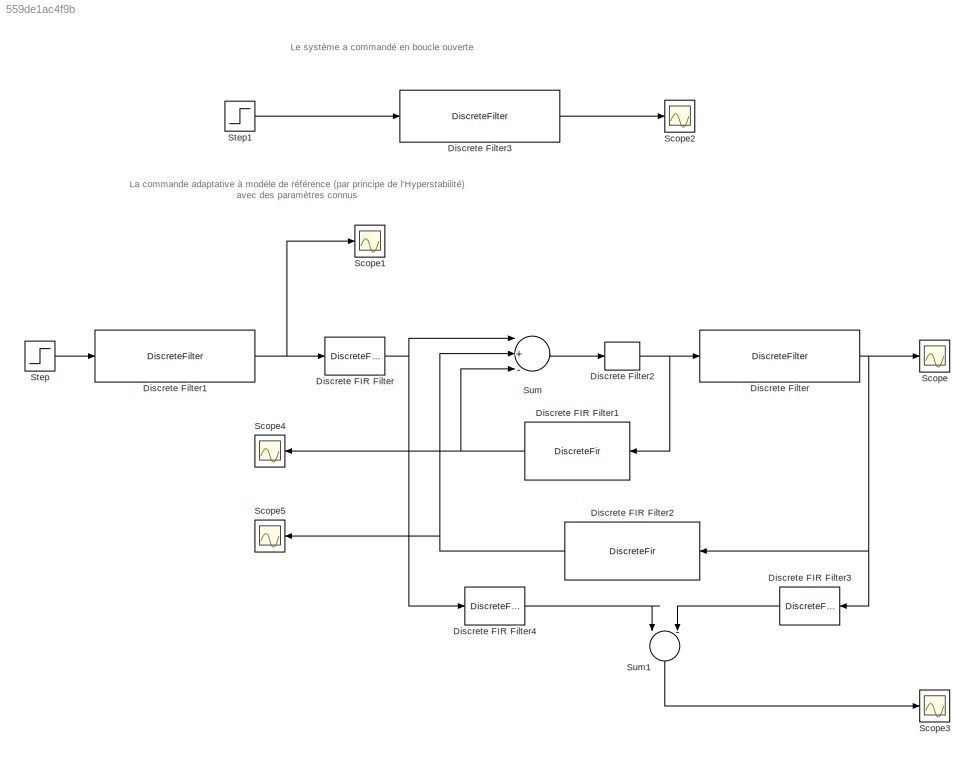
MODEL slx_559de1ac4f9b
KIND model
CONFIG AbsTol = auto
CONFIG EnableMultiTasking = off
CONFIG FixedStep = auto
CONFIG MaxStep = auto
CONFIG MinStep = auto
CONFIG RelTol = 1e-3
CONFIG SampleTimeConstraint = Unconstrained
CONFIG Solver = VariableStepAuto
CONFIG SolverName = VariableStepAuto
CONFIG StartTime = 0.0
CONFIG StopTime = 10
BLOCK [DiscreteFir] Discrete FIR Filter
  Coefficients = [1 0.5]
  InputPortMap = u0
  OutputPortMap = o0
  Ports = [1, 1]
  SampleTime = 0.1
BLOCK [DiscreteFir] Discrete FIR Filter1
  Coefficients = [0 1 0.5]
  InputPortMap = u0
  OutputPortMap = o0
  Ports = [1, 1]
  SampleTime = 0.1
BLOCK [DiscreteFir] Discrete FIR Filter2
  Coefficients = [-1.5 -1]
  InputPortMap = u0
  OutputPortMap = o0
  Ports = [1, 1]
  SampleTime = 0.1
BLOCK [DiscreteFir] Discrete FIR Filter3
  Coefficients = [1 0.5]
  InputPortMap = u0
  OutputPortMap = o0
  Ports = [1, 1]
  SampleTime = 0.1
BLOCK [DiscreteFir] Discrete FIR Filter4
  Coefficients = [0 1]
  InputPortMap = u0
  OutputPortMap = o0
  Ports = [1, 1]
  SampleTime = 0.1
BLOCK [DiscreteFilter] Discrete Filter
  Denominator = [1 2 1]
  InitialDenominatorStates = [1 1]
  InitialStates = 1
  InputPortMap = u0
  Numerator = [0 2 1 0.5]
  Ports = [1, 1]
  SampleTime = 0.1
BLOCK [DiscreteFilter] Discrete Filter1
  Denominator = [1 -1 0.25]
  InitialStates = 2
  InputPortMap = u0
  Numerator = [1 0.3]
  Ports = [1, 1]
  SampleTime = 0.1
BLOCK [DiscreteFilter] Discrete Filter2
  Denominator = 2
  InputPortMap = u0
  Numerator = 1
  Ports = [1, 1]
  SampleTime = .1
BLOCK [DiscreteFilter] Discrete Filter3
  Denominator = [1 2 1]
  InitialStates = 1
  InputPortMap = u0
  Numerator = [0 2 1 0.5]
  Ports = [1, 1]
  SampleTime = 0.1
BLOCK [Scope] Scope
  Floating = off
  NumInputPorts = 1
  Ports = [1]
  ScopeSpecificationString = Simulink.scopes.TimeScopeBlockCfg('CurrentConfiguration', extmgr.ConfigurationSet(extmgr.Configuration('Core','General UI',true),extmgr.Configuration('Core','Source UI',true),extmgr.Configuration('Sources','WiredSimulink',true),extmgr.Configuration('Visuals','Time Domain',true,'SerializedDisplays',{struct('MinYLimReal','3.22344','MaxYLimReal','5.61406','YLabelReal','','MinYLimMag','3.22344','MaxYL...<+1386ch>
BLOCK [Scope] Scope1
  Floating = off
  NumInputPorts = 1
  Ports = [1]
  ScopeSpecificationString = Simulink.scopes.TimeScopeBlockCfg('CurrentConfiguration', extmgr.ConfigurationSet(extmgr.Configuration('Core','General UI',true),extmgr.Configuration('Core','Source UI',true),extmgr.Configuration('Sources','WiredSimulink',true,'DataLoggingVariableName','ScopeData1'),extmgr.Configuration('Visuals','Time Domain',true,'SerializedDisplays',{struct('MinYLimReal','2.8375','MaxYLimReal','5.4625','YLabelR...<+1416ch>
BLOCK [Scope] Scope2
  Floating = off
  NumInputPorts = 1
  Ports = [1]
  ScopeSpecificationString = Simulink.scopes.TimeScopeBlockCfg('CurrentConfiguration', extmgr.ConfigurationSet(extmgr.Configuration('Core','General UI',true),extmgr.Configuration('Core','Source UI',true),extmgr.Configuration('Sources','WiredSimulink',true,'DataLoggingVariableName','ScopeData2'),extmgr.Configuration('Visuals','Time Domain',true,'SerializedDisplays',{struct('MinYLimReal','-288.625','MaxYLimReal','292.625','YLab...<+1402ch>
BLOCK [Scope] Scope3
  Floating = off
  NumInputPorts = 1
  Ports = [1]
  ScopeSpecificationString = Simulink.scopes.TimeScopeBlockCfg('CurrentConfiguration', extmgr.ConfigurationSet(extmgr.Configuration('Core','General UI',true),extmgr.Configuration('Core','Source UI',true),extmgr.Configuration('Sources','WiredSimulink',true,'DataLoggingVariableName','ScopeData3'),extmgr.Configuration('Visuals','Time Domain',true,'SerializedDisplays',{struct('MinYLimReal','-0.4375','MaxYLimReal','3.9375','YLabel...<+1428ch>
BLOCK [Scope] Scope4
  Floating = off
  NumInputPorts = 1
  Ports = [1]
  ScopeSpecificationString = Simulink.scopes.TimeScopeBlockCfg('CurrentConfiguration', extmgr.ConfigurationSet(extmgr.Configuration('Core','General UI',true),extmgr.Configuration('Core','Source UI',true),extmgr.Configuration('Sources','WiredSimulink',true,'DataLoggingVariableName','ScopeData4'),extmgr.Configuration('Visuals','Time Domain',true,'SerializedDisplays',{struct('MinYLimReal','-1.11429','MaxYLimReal','10.02857','YLa...<+1453ch>
BLOCK [Scope] Scope5
  Floating = off
  NumInputPorts = 1
  Ports = [1]
  ScopeSpecificationString = Simulink.scopes.TimeScopeBlockCfg('CurrentConfiguration', extmgr.ConfigurationSet(extmgr.Configuration('Core','General UI',true),extmgr.Configuration('Core','Source UI',true),extmgr.Configuration('Sources','WiredSimulink',true,'DataLoggingVariableName','ScopeData5'),extmgr.Configuration('Visuals','Time Domain',true,'SerializedDisplays',{struct('MinYLimReal','-14.61784','MaxYLimReal','1.56057','YLa...<+1454ch>
BLOCK [Step] Step
  SampleTime = 0
  Time = 0
BLOCK [Step] Step1
  SampleTime = 0
BLOCK [Sum] Sum
  InputSameDT = off
  Inputs = |+--
  OutDataTypeStr = Inherit: Inherit via internal rule
  Ports = [3, 1]
  SaturateOnIntegerOverflow = off
BLOCK [Sum] Sum1
  InputSameDT = off
  Inputs = |-+
  OutDataTypeStr = Inherit: Inherit via internal rule
  Ports = [2, 1]
  SaturateOnIntegerOverflow = off
ANNOTATION (root): Le système a commandé en boucle ouverte
ANNOTATION (root): La commande adaptative à modèle de référence (par principe de l'Hyperstabilité) avec des paramètres connus
NET Discrete FIR Filter1:1 -> Scope4:1, Sum:3
NET Discrete FIR Filter2:1 -> Scope5:1, Sum:2
LINE Discrete FIR Filter3:1 -> Sum1:2
LINE Discrete FIR Filter4:1 -> Sum1:1
NET Discrete FIR Filter:1 -> Discrete FIR Filter4:1, Sum:1
NET Discrete Filter1:1 -> Discrete FIR Filter:1, Scope1:1
NET Discrete Filter2:1 -> Discrete FIR Filter1:1, Discrete Filter:1
LINE Discrete Filter3:1 -> Scope2:1
NET Discrete Filter:1 -> Discrete FIR Filter2:1, Discrete FIR Filter3:1, Scope:1
LINE Step1:1 -> Discrete Filter3:1
LINE Step:1 -> Discrete Filter1:1
LINE Sum1:1 -> Scope3:1
LINE Sum:1 -> Discrete Filter2:1
note: NET lines group one-source signal fan-out (src -> all destinations, sorted); 1:1 wires keep LINE
